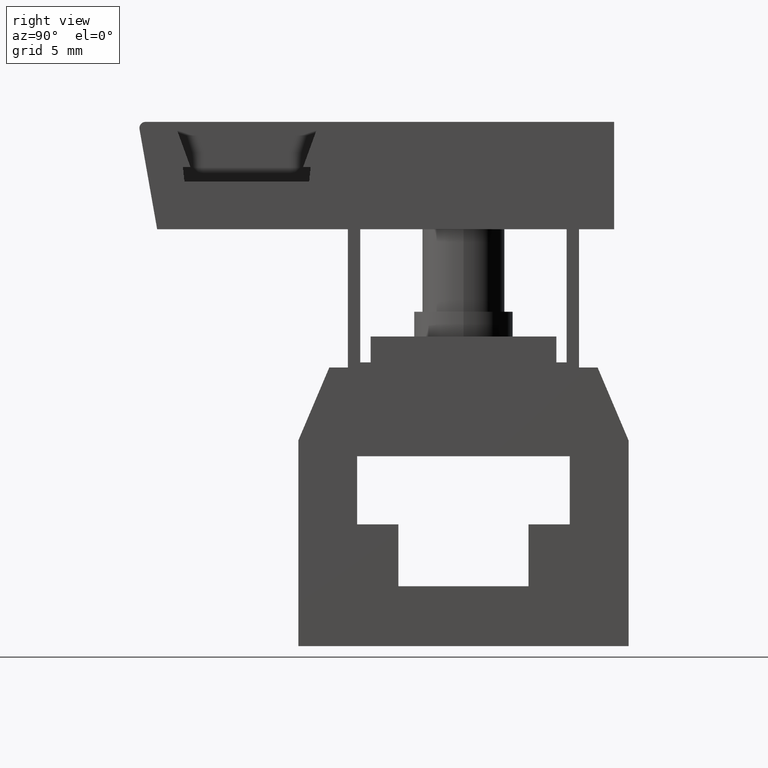
[diagram: clean part render]
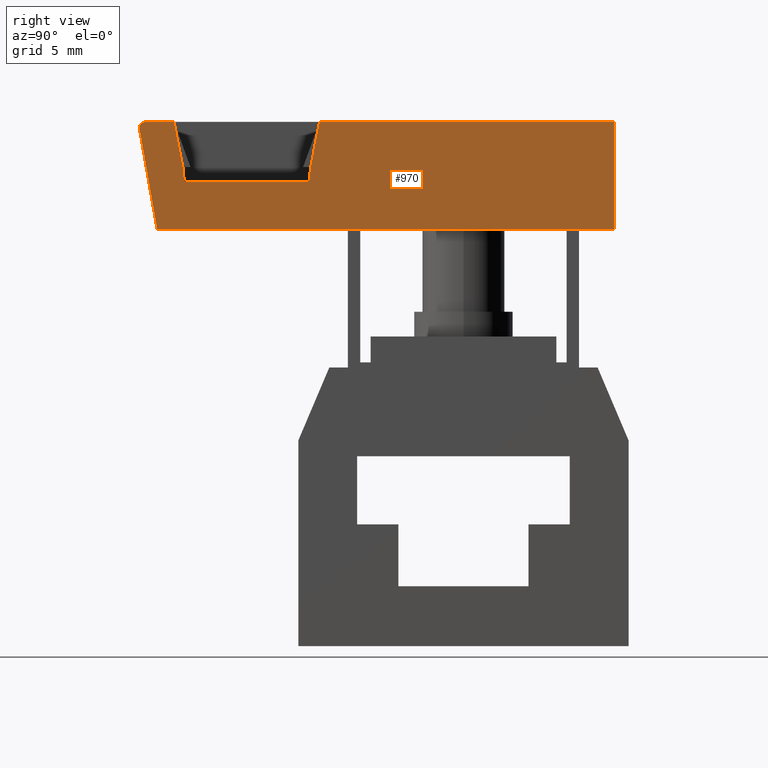
[diagram: same view with one face highlighted and labeled with its STEP entity id]
A machine part, right view. The second image highlights one B-rep face of the part: STEP entity #970.
In plain terms, the highlighted planar face has unit normal (-1, 0, -0).
Its self-contained STEP definition (entity closure, byte-faithful):
#10=CARTESIAN_POINT('',(-0.4,16.9649713008287,23.6998172481057));
#20=DIRECTION('',(-1.,0.,6.12323399573677E-17));
#30=DIRECTION('',(6.12323399573677E-17,0.,1.));
#40=AXIS2_PLACEMENT_3D('',#10,#20,#30);
#50=PLANE('',#40);
#60=CARTESIAN_POINT('',(-0.400000000000001,28.7,15.4058136949395));
#70=DIRECTION('',(6.41460922803611E-18,-0.994497688669061,
0.104758518660274));
#80=VECTOR('',#70,1.);
#90=LINE('',#60,#80);
#100=CARTESIAN_POINT('',(-0.400000000000001,28.7,15.4058136949395));
#110=VERTEX_POINT('',#100);
#120=CARTESIAN_POINT('',(-0.400000000000001,28.,15.4795503802005));
#130=VERTEX_POINT('',#120);
#140=EDGE_CURVE('',#110,#130,#90,.T.);
#150=ORIENTED_EDGE('',*,*,#140,.T.);
#160=CARTESIAN_POINT('',(-0.400000000000001,1.8,20.6847059148044));
#170=DIRECTION('',(-2.77555756156289E-17,0.981283551889514,
-0.192568405485166));
#180=VECTOR('',#170,1.);
#190=LINE('',#160,#180);
#200=CARTESIAN_POINT('',(-0.400000000000001,30.9,14.9740827327201));
#210=VERTEX_POINT('',#200);
#220=EDGE_CURVE('',#110,#210,#190,.T.);
#230=ORIENTED_EDGE('',*,*,#220,.F.);
#240=CARTESIAN_POINT('',(-0.400000000000002,30.9,0.));
#250=DIRECTION('',(-6.12323399573677E-17,0.,-1.));
#260=VECTOR('',#250,1.);
#270=LINE('',#240,#260);
#280=CARTESIAN_POINT('',(-0.400000000000002,30.9,0.699999999999999));
#290=VERTEX_POINT('',#280);
#300=EDGE_CURVE('',#210,#290,#270,.T.);
#310=ORIENTED_EDGE('',*,*,#300,.F.);
#320=CARTESIAN_POINT('',(-0.400000000000002,1.8,0.699999999999999));
#330=DIRECTION('',(0.,-1.,0.));
#340=VECTOR('',#330,1.);
#350=LINE('',#320,#340);
#360=CARTESIAN_POINT('',(-0.400000000000002,25.7,0.699999999999999));
#370=VERTEX_POINT('',#360);
#380=EDGE_CURVE('',#290,#370,#350,.T.);
#390=ORIENTED_EDGE('',*,*,#380,.F.);
#400=CARTESIAN_POINT('',(-0.400000000000002,25.7,0.));
#410=DIRECTION('',(6.12323399573677E-17,0.,1.));
#420=VECTOR('',#410,1.);
#430=LINE('',#400,#420);
#440=CARTESIAN_POINT('',(-0.4,25.7,22.8404430262));
#450=VERTEX_POINT('',#440);
#460=EDGE_CURVE('',#370,#450,#430,.T.);
#470=ORIENTED_EDGE('',*,*,#460,.F.);
#480=CARTESIAN_POINT('',(-0.400000000000001,1.8,18.6262281872676));
#490=DIRECTION('',(1.38777878078145E-17,0.984807753012208,
0.173648177666931));
#500=VECTOR('',#490,1.);
#510=LINE('',#480,#500);
#520=CARTESIAN_POINT('',(-0.4,30.5479055466999,23.6952595740094));
#530=VERTEX_POINT('',#520);
#540=EDGE_CURVE('',#450,#530,#510,.T.);
#550=ORIENTED_EDGE('',*,*,#540,.F.);
#560=CARTESIAN_POINT('',(-0.4,30.6,23.3998172481057));
#570=DIRECTION('',(1.,0.,-6.12323399573677E-17));
#580=DIRECTION('',(-6.12323399573677E-17,0.,-1.));
#590=AXIS2_PLACEMENT_3D('',#560,#570,#580);
#600=CIRCLE('',#590,0.3);
#610=CARTESIAN_POINT('',(-0.4,30.9,23.3998172481057));
#620=VERTEX_POINT('',#610);
#630=EDGE_CURVE('',#620,#530,#600,.T.);
#640=ORIENTED_EDGE('',*,*,#630,.T.);
#650=CARTESIAN_POINT('',(-0.400000000000002,30.9,0.));
#660=DIRECTION('',(-6.12323399573677E-17,0.,-1.));
#670=VECTOR('',#660,1.);
#680=LINE('',#650,#670);
#690=CARTESIAN_POINT('',(-0.4,30.9,22.0255517634914));
#700=VERTEX_POINT('',#690);
#710=EDGE_CURVE('',#620,#700,#680,.T.);
#720=ORIENTED_EDGE('',*,*,#710,.F.);
#730=CARTESIAN_POINT('',(-0.400000000000001,1.8,16.3149285814068));
#740=DIRECTION('',(-2.77555756156289E-17,-0.981283551889513,
-0.192568405485172));
#750=VECTOR('',#740,1.);
#760=LINE('',#730,#750);
#770=CARTESIAN_POINT('',(-0.4,28.7,21.5938208012719));
#780=VERTEX_POINT('',#770);
#790=EDGE_CURVE('',#700,#780,#760,.T.);
#800=ORIENTED_EDGE('',*,*,#790,.F.);
#810=CARTESIAN_POINT('',(-0.4,28.,21.5200841160109));
#820=DIRECTION('',(6.41460922803577E-18,0.994497688669062,
0.104758518660268));
#830=VECTOR('',#820,1.);
#840=LINE('',#810,#830);
#850=CARTESIAN_POINT('',(-0.4,28.,21.5200841160109));
#860=VERTEX_POINT('',#850);
#870=EDGE_CURVE('',#860,#780,#840,.T.);
#880=ORIENTED_EDGE('',*,*,#870,.T.);
#890=CARTESIAN_POINT('',(-0.400000000000002,28.,0.));
#900=DIRECTION('',(6.12323399573677E-17,0.,1.));
#910=VECTOR('',#900,1.);
#920=LINE('',#890,#910);
#930=EDGE_CURVE('',#130,#860,#920,.T.);
#940=ORIENTED_EDGE('',*,*,#930,.T.);
#950=EDGE_LOOP('',(#940,#880,#800,#720,#640,#550,#470,#390,#310,#230,
#150));
#960=FACE_OUTER_BOUND('',#950,.T.);
#970=ADVANCED_FACE('',(#960),#50,.F.);